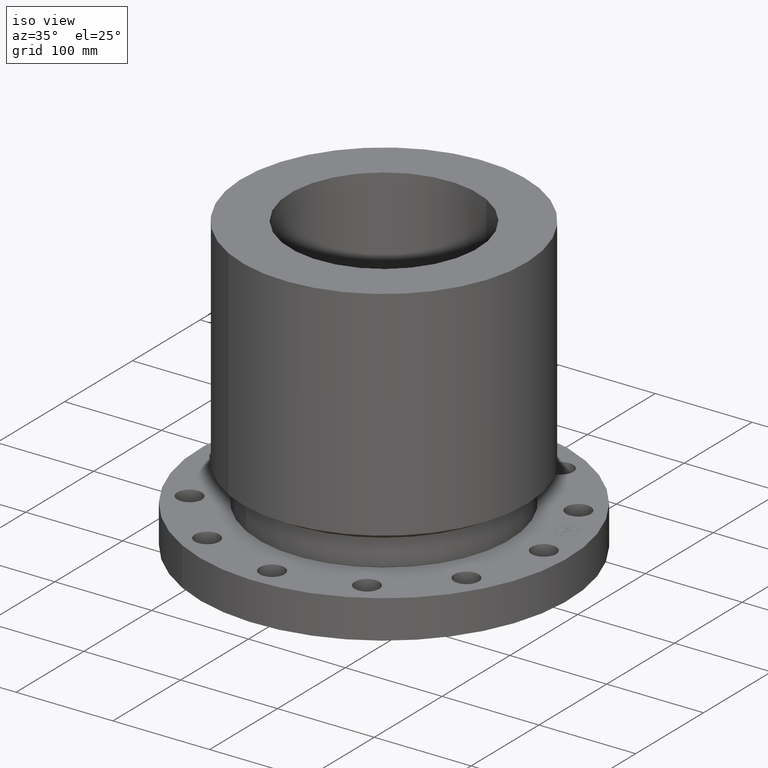
[diagram: clean part render]
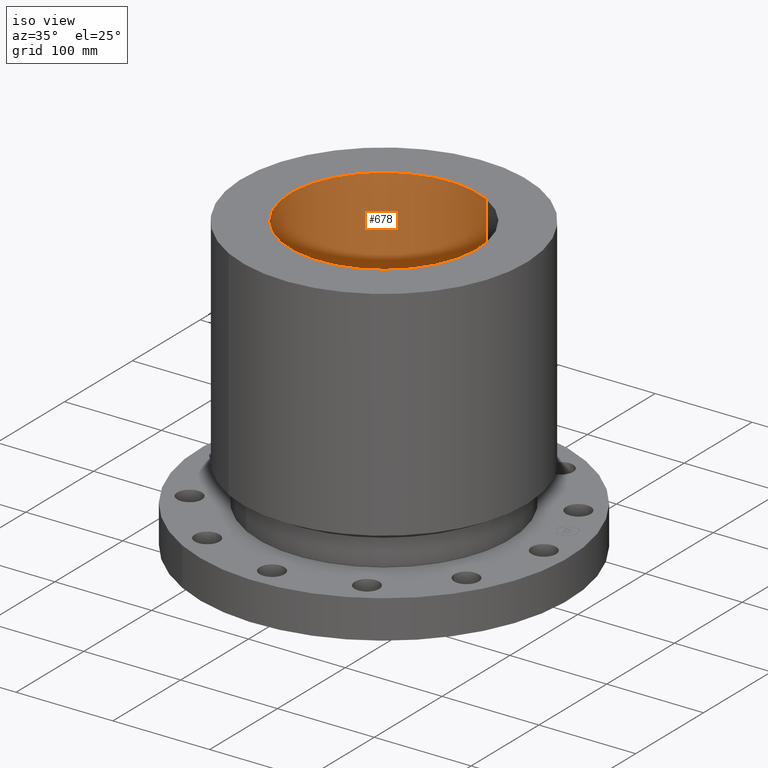
[diagram: same view with one face highlighted and labeled with its STEP entity id]
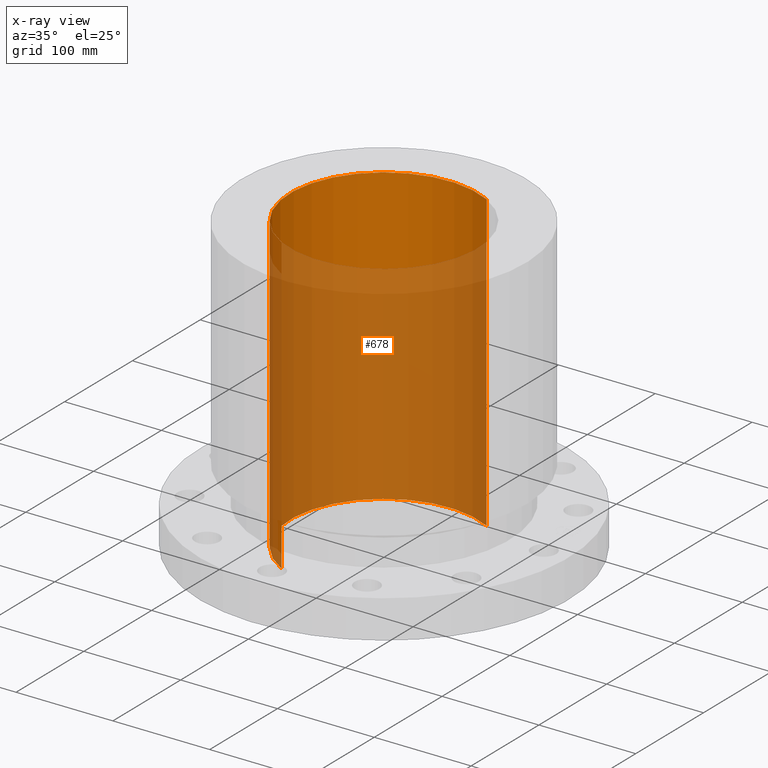
[diagram: x-ray of the same camera — body ghosted, the highlighted face saturated]
A machine part, iso view. The second image highlights one B-rep face of the part: STEP entity #678.
The next image is the same camera in x-ray: the body ghosted, the highlighted face saturated — about 76% of this face is hidden behind the body in this view.
In plain terms, the highlighted cylindrical surface (partial cylindrical patch) has radius 96.774 mm, axis along (0, 0, -1).
Its self-contained STEP definition (entity closure, byte-faithful):
#619=AXIS2_PLACEMENT_3D('Circle Axis2P3D',#617,#618,$) ;
#639=AXIS2_PLACEMENT_3D('Cylinder Axis2P3D',#636,#637,#638) ;
#669=AXIS2_PLACEMENT_3D('Circle Axis2P3D',#667,#668,$) ;
#617=CARTESIAN_POINT('Axis2P3D Location',(0.,0.,11.9375)) ;
#621=CARTESIAN_POINT('Vertex',(-1.82661130209,-3.34358956082,11.9375)) ;
#623=CARTESIAN_POINT('Vertex',(1.82661130209,3.34358956082,11.9375)) ;
#636=CARTESIAN_POINT('Axis2P3D Location',(0.,0.,5.93750000002)) ;
#641=CARTESIAN_POINT('Line Origine',(1.82661130209,3.34358956082,5.93750000002)) ;
#645=CARTESIAN_POINT('Vertex',(1.82661130209,3.34358956082,-0.0625000000003)) ;
#652=CARTESIAN_POINT('Vertex',(-1.82661130209,-3.34358956082,-0.0625000000003)) ;
#655=CARTESIAN_POINT('Line Origine',(-1.82661130209,-3.34358956082,5.93750000002)) ;
#667=CARTESIAN_POINT('Axis2P3D Location',(0.,0.,-0.0625000000003)) ;
#618=DIRECTION('Axis2P3D Direction',(0.,0.,-0.0393700787402)) ;
#637=DIRECTION('Axis2P3D Direction',(0.,0.,-0.0393700787402)) ;
#638=DIRECTION('Axis2P3D XDirection',(-0.0188750212049,-0.0345504945626,0.)) ;
#642=DIRECTION('Vector Direction',(0.,0.,-0.0393700787402)) ;
#656=DIRECTION('Vector Direction',(0.,0.,-0.0393700787402)) ;
#668=DIRECTION('Axis2P3D Direction',(0.,0.,-0.0393700787402)) ;
#643=VECTOR('Line Direction',#642,0.0393700787402) ;
#657=VECTOR('Line Direction',#656,0.0393700787402) ;
#673=ORIENTED_EDGE('',*,*,#625,.F.) ;
#674=ORIENTED_EDGE('',*,*,#659,.T.) ;
#675=ORIENTED_EDGE('',*,*,#671,.T.) ;
#676=ORIENTED_EDGE('',*,*,#647,.F.) ;
#678=ADVANCED_FACE('PartBody',(#677),#640,.F.) ;
#620=CIRCLE('generated circle',#619,3.81000000002) ;
#670=CIRCLE('generated circle',#669,3.81000000002) ;
#640=CYLINDRICAL_SURFACE('generated cylinder',#639,3.81000000002) ;
#625=EDGE_CURVE('',#622,#624,#620,.T.) ;
#647=EDGE_CURVE('',#624,#646,#644,.T.) ;
#659=EDGE_CURVE('',#622,#653,#658,.T.) ;
#671=EDGE_CURVE('',#653,#646,#670,.T.) ;
#672=EDGE_LOOP('',(#673,#674,#675,#676)) ;
#677=FACE_OUTER_BOUND('',#672,.T.) ;
#644=LINE('Line',#641,#643) ;
#658=LINE('Line',#655,#657) ;
#622=VERTEX_POINT('',#621) ;
#624=VERTEX_POINT('',#623) ;
#646=VERTEX_POINT('',#645) ;
#653=VERTEX_POINT('',#652) ;